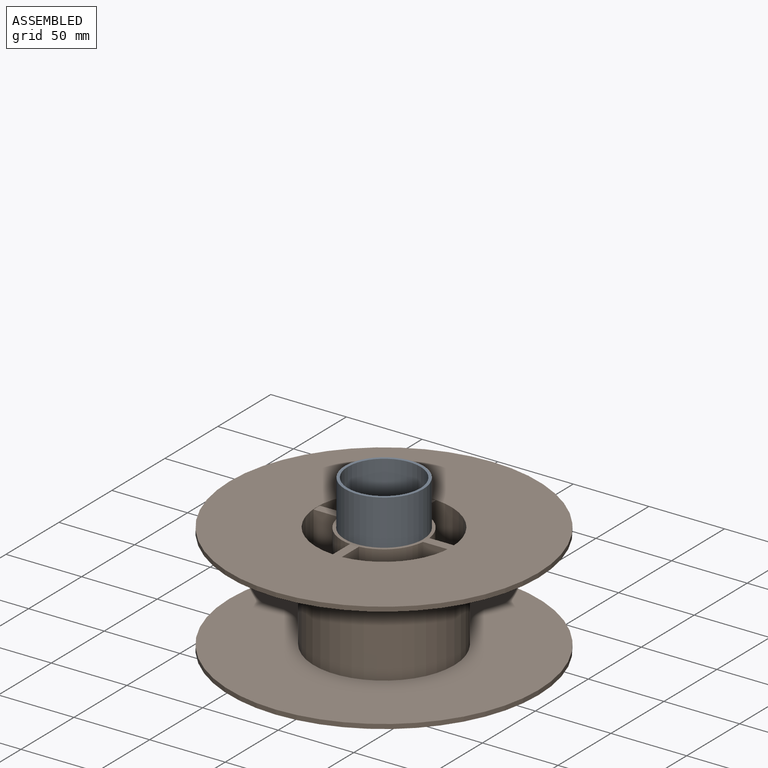
[diagram: assembled view]
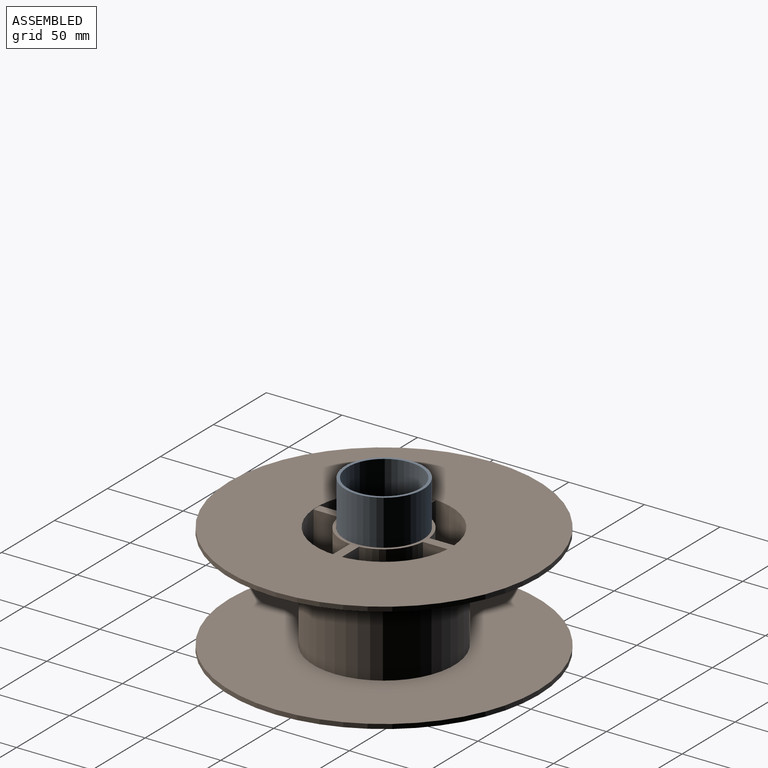
[diagram: assembled view, second angle]
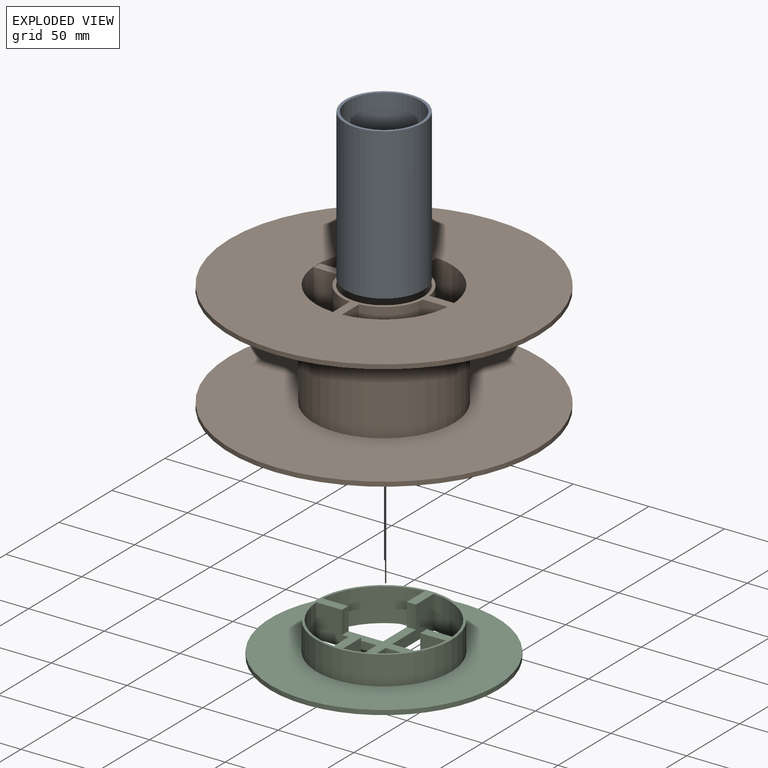
[diagram: exploded view]
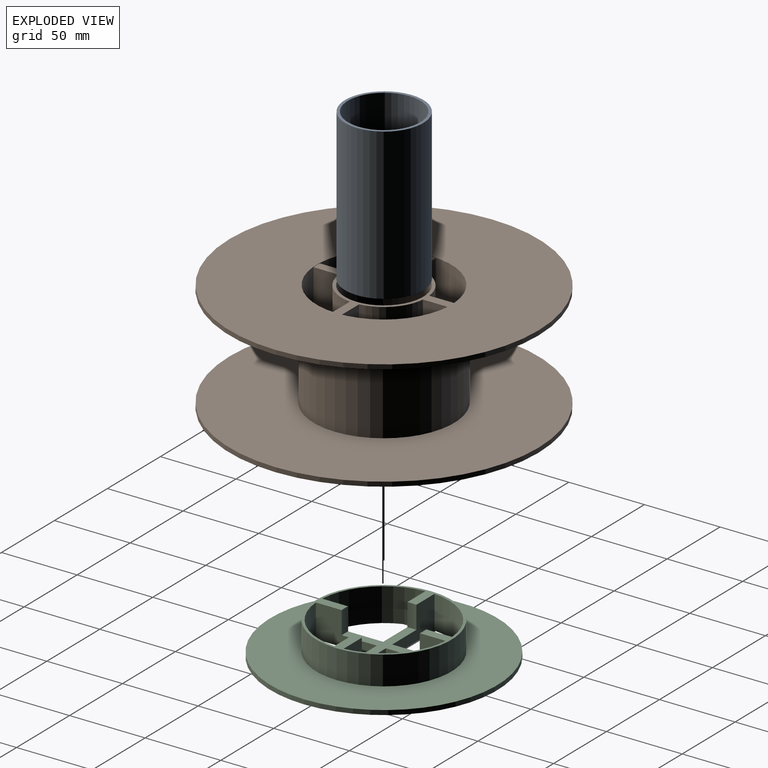
[diagram: exploded view, second angle]
ASSEMBLY  parts=3 mates=2
PART A: 5 faces, bbox 51.7x51.7x100 mm
  f0: plane 48x48mm, normal (0,0,1), area 1809.6mm2, adj f1
  f1: cylinder r=24mm len=97mm, axis (0,0,-1), area 14627.3mm2, adj f0,f3
  f2: cylinder r=25.86mm len=100mm, axis (0,0,-1), area 16248.3mm2, adj f3,f4
  f3: plane 51.72x51.72mm, normal (0,0,1), area 291.4mm2, adj f1,f2
  f4: plane 51.72x51.72mm, normal (0,0,-1), area 2100.9mm2, adj f2
PART B: 23 faces, bbox 204.3x204.3x73.1 mm
  f0: cylinder r=46.5mm len=93mm, axis (0,0,-1), area 19601.6mm2, adj f2,f22
  f1: cylinder r=102.14mm len=204.29mm, axis (0,0,-1), area 1925.4mm2, adj f2,f3
  f2: plane 204.29x204.29mm, normal (0,0,1), area 25985.2mm2, adj f0,f1
  f3: plane 204.29x204.29mm, normal (0,0,-1), area 26517.8mm2, adj f1,f4
  f4: cylinder r=44.64mm len=89.28mm, axis (0,0,-1), area 19176.3mm2, adj f3,f5,f6,f7,f9,f10,f12,f13
  f5: plane 204.29x204.29mm, normal (0,0,1), area 26517.8mm2, adj f4,f21
  f6: plane 89.28x89.28mm, normal (0,0,1), area 745.7mm2, adj f4,f8,f9,f10,f11,f12,f13,f14
  f7: plane 89.28x89.28mm, normal (0,0,-1), area 745.7mm2, adj f4,f8,f9,f10,f11,f12,f13,f14
  f8: cylinder r=28mm len=55.13mm, axis (0,0,-1), area 2093.3mm2, adj f6,f7,f9,f20
  f9: plane 55.13x16.7mm, normal (0,-1,0), area 920.7mm2, adj f4,f6,f7,f8
  f10: plane 55.13x16.7mm, normal (0,1,0), area 920.7mm2, adj f4,f6,f7,f11
  f11: cylinder r=28mm len=55.13mm, axis (0,0,-1), area 2093.3mm2, adj f6,f7,f10,f12
  f12: plane 55.13x16.7mm, normal (1,0,0), area 920.7mm2, adj f4,f6,f7,f11
  f13: plane 55.13x16.7mm, normal (-1,0,0), area 920.7mm2, adj f4,f6,f7,f14
  f14: cylinder r=28mm len=55.13mm, axis (0,0,-1), area 2093.3mm2, adj f6,f7,f13,f15
  f15: plane 55.13x16.7mm, normal (0,1,0), area 920.7mm2, adj f4,f6,f7,f14
  f16: plane 55.13x16.7mm, normal (0,-1,0), area 920.7mm2, adj f4,f6,f7,f17
  f17: cylinder r=28mm len=55.13mm, axis (0,0,-1), area 2093.3mm2, adj f6,f7,f16,f18
  f18: plane 55.13x16.7mm, normal (-1,0,0), area 920.7mm2, adj f4,f6,f7,f17
  f19: cylinder r=25.96mm len=55.13mm, axis (0,0,-1), area 8992.3mm2, adj f6,f7
  f20: plane 55.13x16.7mm, normal (1,0,0), area 920.7mm2, adj f4,f6,f7,f8
  f21: cylinder r=102.14mm len=204.29mm, axis (0,0,-1), area 1925.4mm2, adj f5,f22
  f22: plane 204.29x204.29mm, normal (0,0,-1), area 25985.2mm2, adj f0,f21
PART C: 22 faces, bbox 150x150x22 mm
  f0: cylinder r=43mm len=39.87mm, axis (0,0,-1), area 1345.2mm2, adj f6,f10,f14,f16
  f1: cylinder r=43mm len=39.87mm, axis (0,0,-1), area 1345.2mm2, adj f6,f9,f13,f16
  f2: cylinder r=43mm len=40.29mm, axis (0,0,-1), area 1362.6mm2, adj f6,f8,f12,f16
  f3: cylinder r=43mm len=40.29mm, axis (0,0,-1), area 1362.6mm2, adj f6,f7,f11,f16
  f4: cylinder r=75mm len=150mm, axis (0,0,-1), area 1413.7mm2, adj f5,f6
  f5: plane 150x150mm, normal (0,0,1), area 11411.1mm2, adj f4,f15
  f6: plane 150x150mm, normal (0,0,-1), area 12857.8mm2, adj f0,f1,f2,f3,f4,f7,f8,f9
  f7: plane 40.29x22mm, normal (-1,0,0), area 538.7mm2, adj f3,f6,f11,f16,f17,f19
  f8: plane 39.92x22mm, normal (0,-1,0), area 535.8mm2, adj f2,f6,f12,f16,f17,f18
  f9: plane 39.87x22mm, normal (0,1,0), area 536mm2, adj f1,f6,f13,f16,f17,f18
  f10: plane 39.5x22mm, normal (-1,0,0), area 533.1mm2, adj f0,f6,f14,f16,f17,f21
  f11: plane 39.92x22mm, normal (0,-1,0), area 535.8mm2, adj f3,f6,f7,f16,f17,f20
  f12: plane 40.29x22mm, normal (1,0,0), area 538.7mm2, adj f2,f6,f8,f16,f17,f19
  f13: plane 39.5x22mm, normal (1,0,0), area 533.1mm2, adj f1,f6,f9,f16,f17,f21
  f14: plane 39.87x22mm, normal (0,1,0), area 536mm2, adj f0,f6,f10,f16,f17,f20
  f15: cylinder r=44.64mm len=89.28mm, axis (0,0,-1), area 5329.1mm2, adj f5,f16
  f16: plane 89.28x89.28mm, normal (0,0,1), area 861.1mm2, adj f0,f1,f2,f3,f7,f8,f9,f10
  f17: plane 51.92x51.92mm, normal (0,0,1), area 585.6mm2, adj f7,f8,f9,f10,f11,f12,f13,f14
  f18: cylinder r=25.96mm len=15mm, axis (0,0,1), area 90.2mm2, adj f8,f9,f16,f17
  f19: cylinder r=25.96mm len=15mm, axis (0,0,1), area 90.2mm2, adj f7,f12,f16,f17
  f20: cylinder r=25.96mm len=15mm, axis (0,0,1), area 90.2mm2, adj f11,f14,f16,f17
  f21: cylinder r=25.96mm len=15mm, axis (0,0,1), area 90.2mm2, adj f10,f13,f16,f17
PLACE A t=(-1.4,2.07,0.04)mm
PLACE B t=(-1.4,1.93,-2.64)mm
PLACE C t=(-1.4,1.88,-6.96)mm
MATE slider B.f7 <-> C.f16  axis (0,0,-1) through (-4.4,29.77,15.04)mm
MATE slider A.f2 <-> C.f17  axis (0,0,-1) through (-1.4,2.07,0.04)mm
